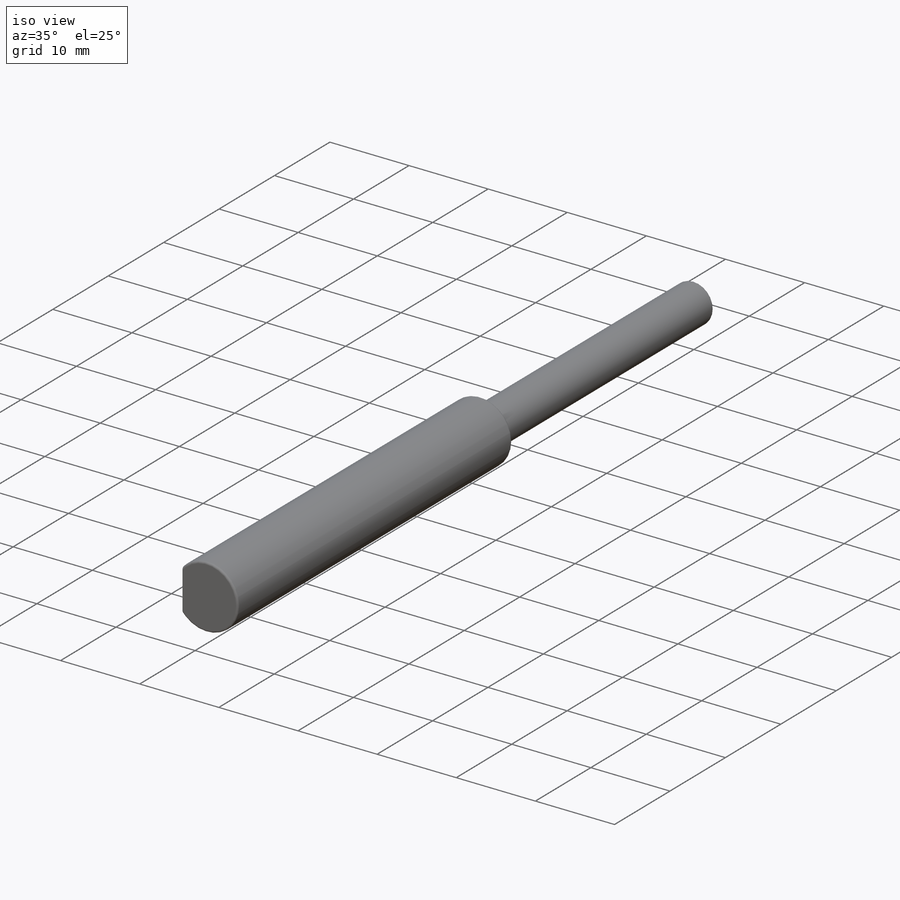
[diagram: iso view]
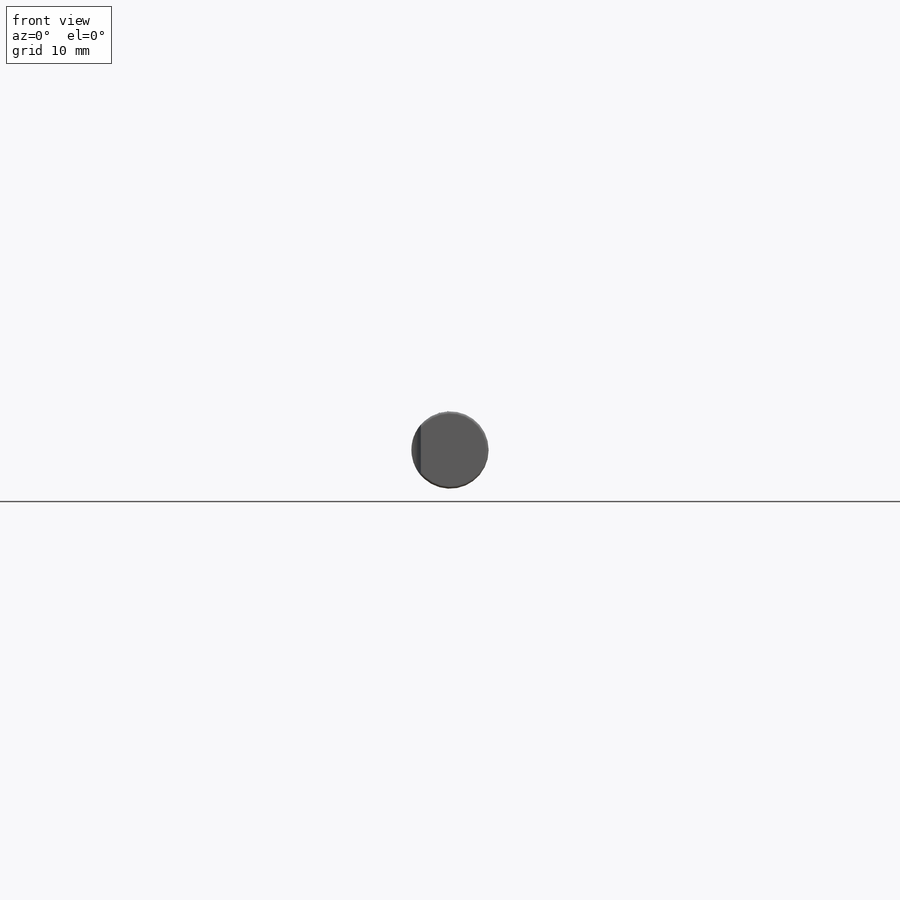
[diagram: front view]
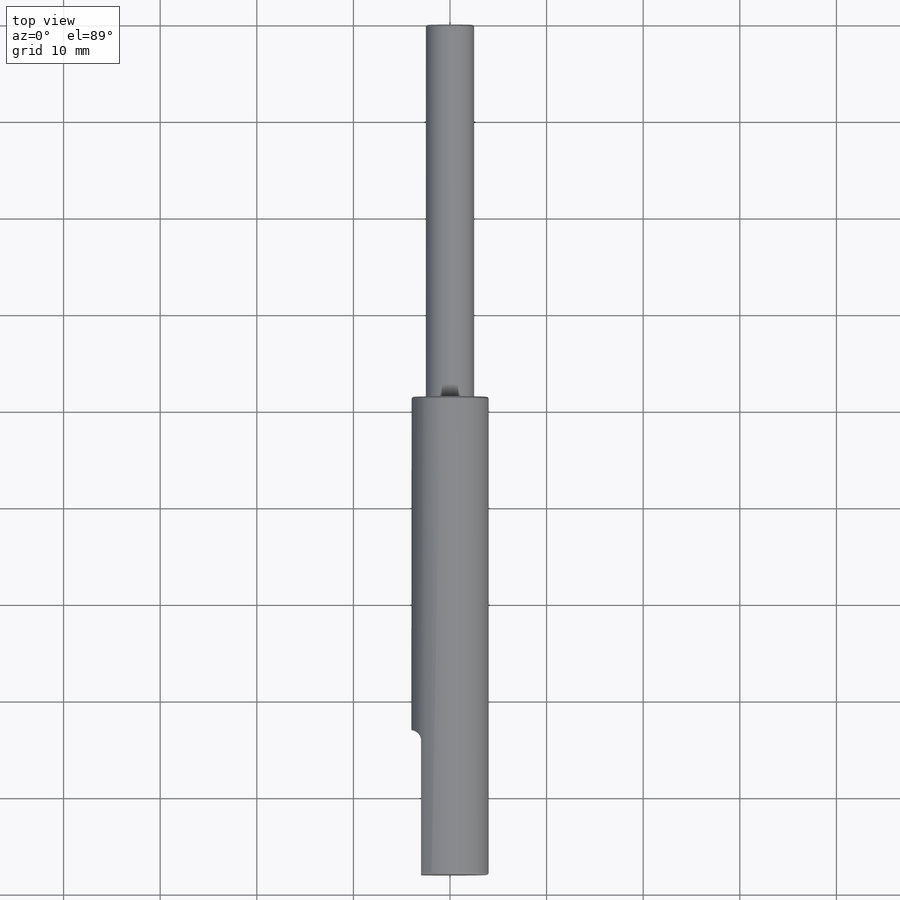
[diagram: top view]
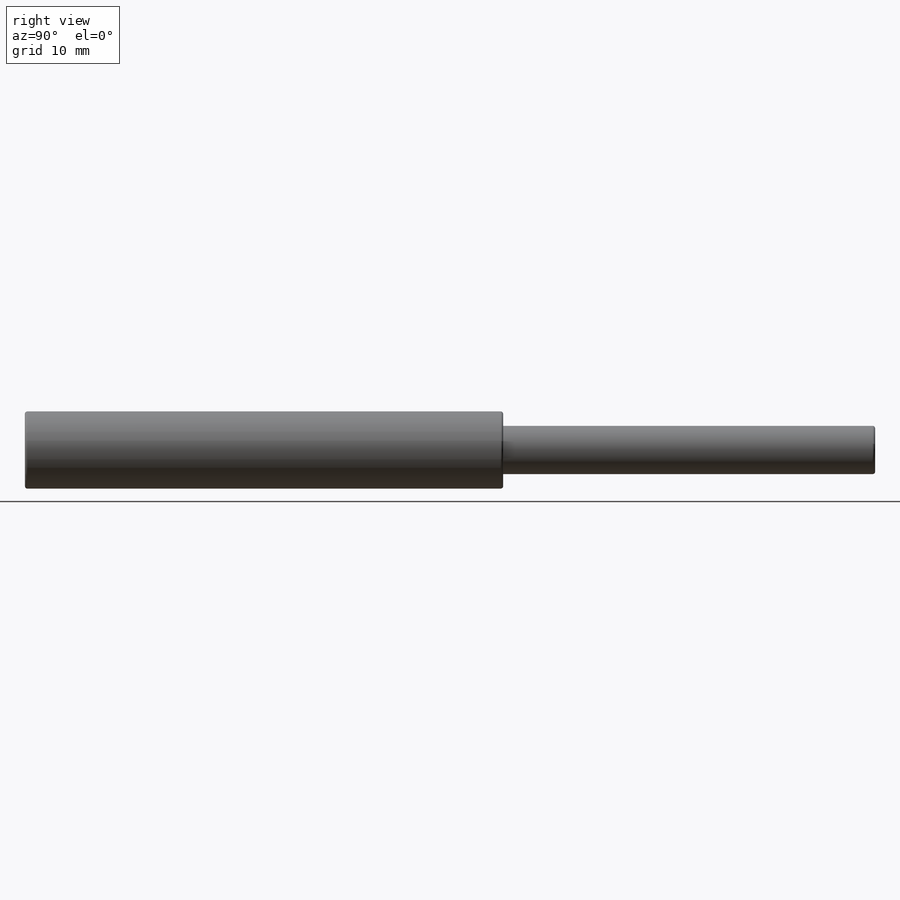
[diagram: right view]
SOLIDWORKS PART (.sldprt)
format: sldprt  version: not decoded by parser v0  size: 232,448 bytes
history: native  units: mm
features: plane x3, sketch x3, extrude x2, material x1, fillet x1, cut_extrude x1 + 2 further entries (+8 scaffold rows collapsed)
feature tree (21):
  scaffold x8  (default folders/planes/origin — collapsed)
  material  "Acero aleado"
  "SurfaceBodyFolder1"
  "SolidBodyFolder1"
  plane  "Plane1"
  plane  "Plane2"
  plane  "Plane3"
  sketch  "Sketch1"  dims[D1=5.0mm]
  extrude  "Extrude1"  Depth=40.5mm
  sketch  "Sketch3"  dims[D1=8.0mm]
  extrude  "Boss-Extrude1"  Depth=47.5mm
  fillet  "Fillet1"  Radius=0.25mm
  sketch  "Sketch2"  dims[c1.D3=1.0mm c1.D1=3.9mm c1.D2=15.0mm c2.D1=3.0mm c2.D2=15.0mm c2.D4=2.0mm]
  cut_extrude  "Cut-Extrude1"  Depth=3mm
decode coverage: 7 of 7 modeling features carry decoded parameters; 2 rows unclassified (native names shown)
note: suppression state not decoded; provenance and decode notes live in map.json
